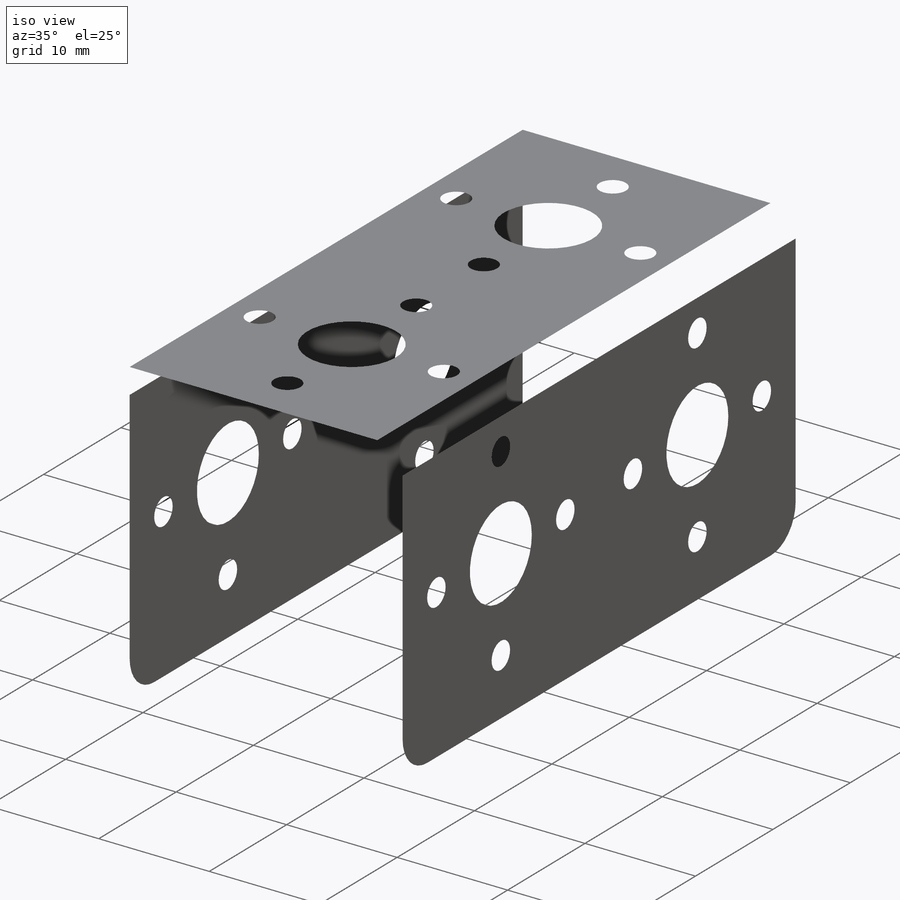
[diagram: iso view]
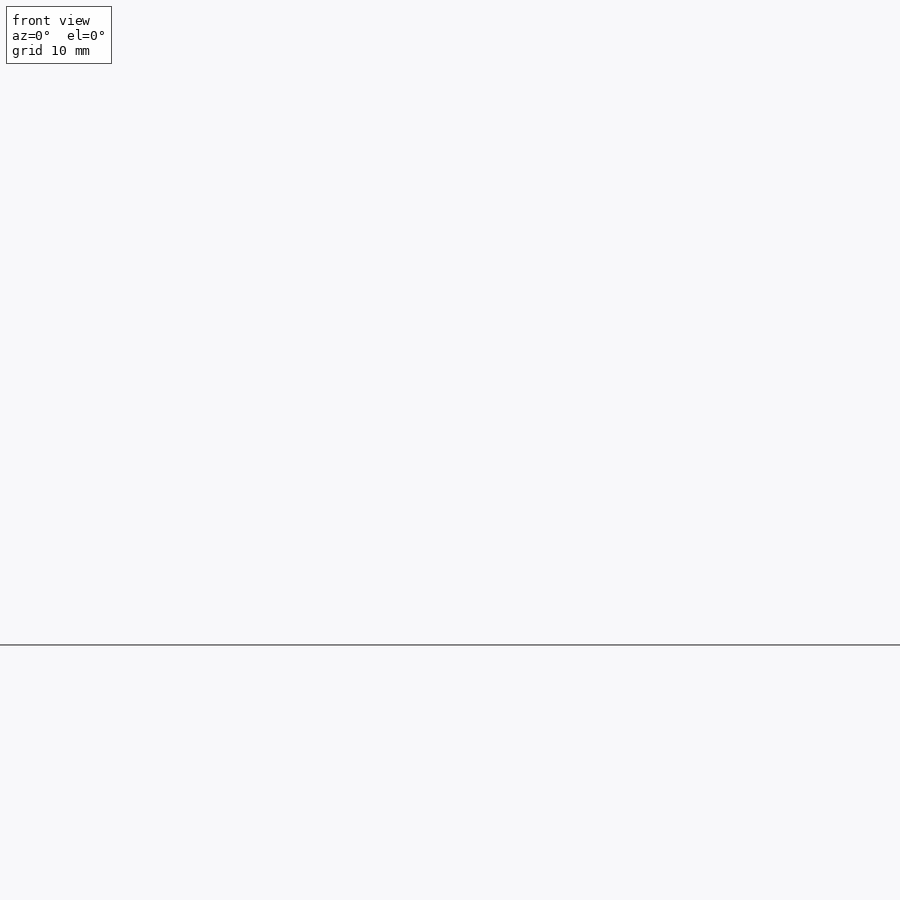
[diagram: front view]
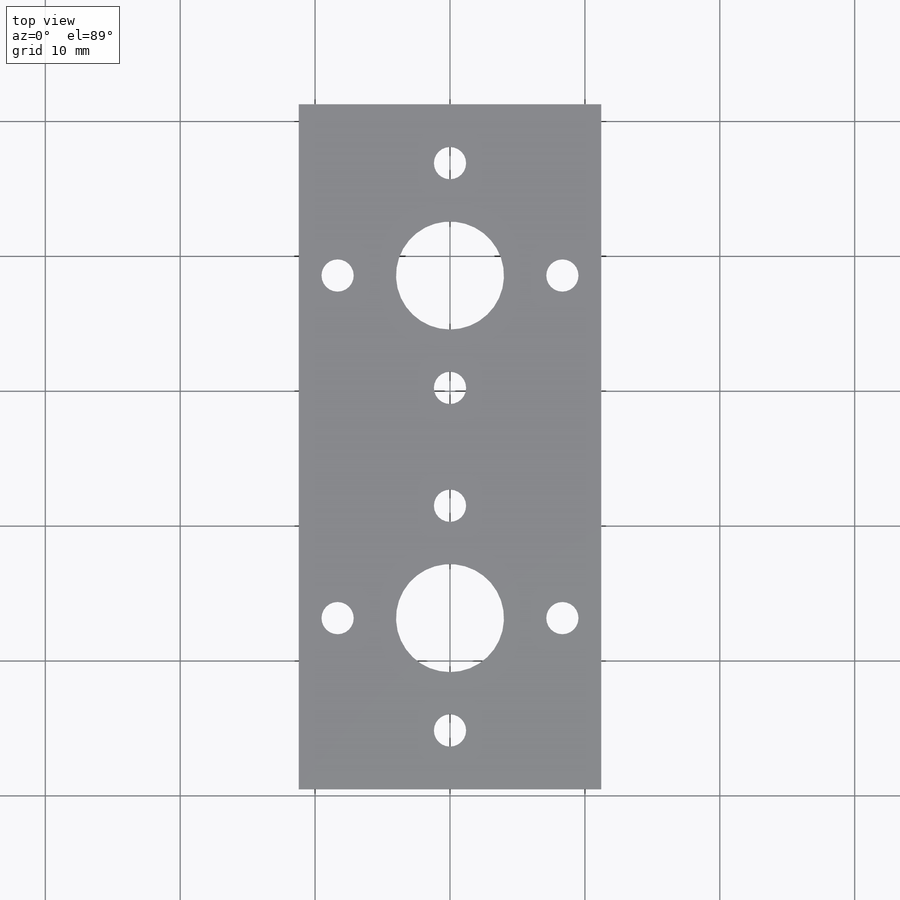
[diagram: top view]
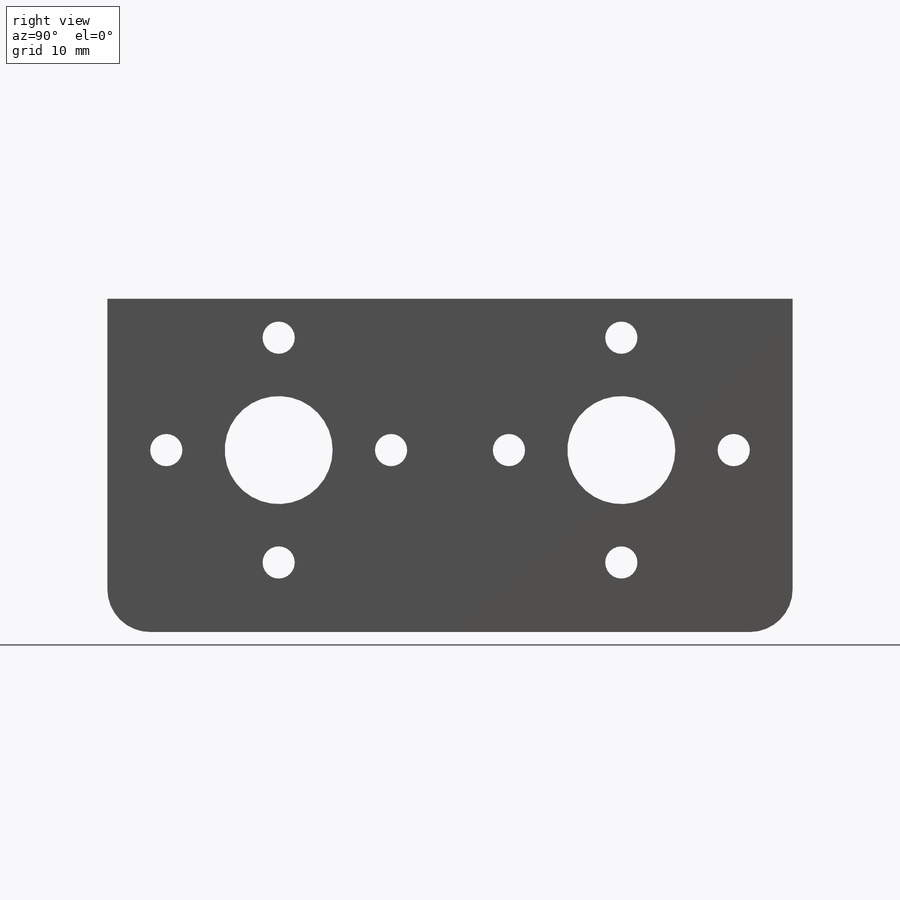
[diagram: right view]
SOLIDWORKS PART (.sldprt)
format: sldprt  version: not decoded by parser v0  size: 2,635,264 bytes
history: native  units: mm
features: sketch x3, cut_extrude x3, fillet x2, material x1, extrude x1, pattern_linear x1 (+13 scaffold rows collapsed)
feature tree (24):
  scaffold x13  (default folders/planes/origin — collapsed)
  material  "Alloy Steel"
  sketch  "Sketch1"  dims[c1.D1=26.9875mm c1.D2=26.9875mm c1.D3=110.0mm c2.D2=26.9875mm c2.D1=26.9875mm c3.D2=26.9875mm c3.D3=2.286mm]
  extrude  "Extrude1"  Depth=50.8mm
  sketch  "Sketch2"  dims[c1.D1=8.001mm c1.D2=16.6624mm c1.D3=2.3876mm c1.D5=8.001mm c1.D4=13.4874mm c2.D5=12.7mm]
  cut_extrude  "Cut-Extrude1"  [1 undecoded]
  sketch  "Sketch22"  dims[D1=8.001mm D2=16.6624mm D3=2.3876mm]
  cut_extrude  "Cut-Extrude12"  [1 undecoded]
  cut_extrude  "ServoHornMtg<3>"  [1 undecoded]
  pattern_linear  "LPattern1"  Count1=2 Count2=1 Spacing1=25.4mm Spacing2=50mm
  fillet  "Fillet1"  Radius=2.286mm
  fillet  "Fillet2"  Radius=3.175mm
decode coverage: 7 of 10 modeling features carry decoded parameters
note: 3 parameter values undecoded
summary: no parameter record found for 3 features
note: suppression state not decoded; provenance and decode notes live in map.json
